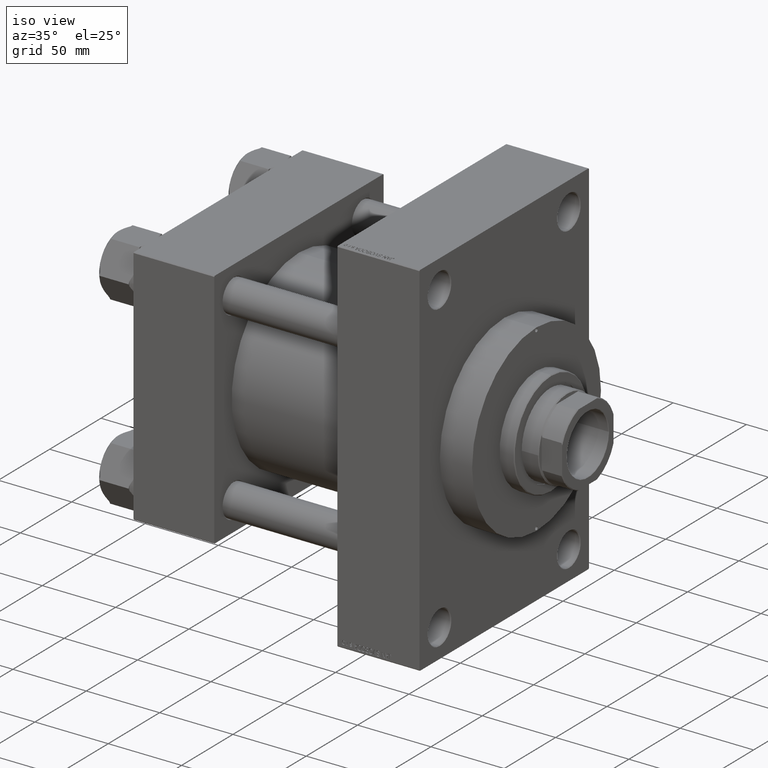
[diagram: clean part render]
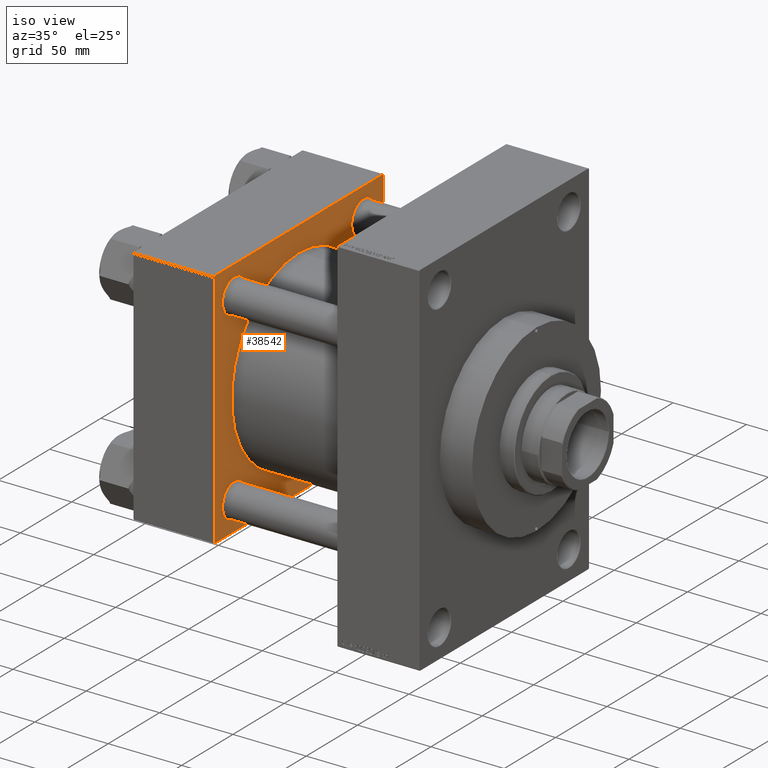
[diagram: same view with one face highlighted and labeled with its STEP entity id]
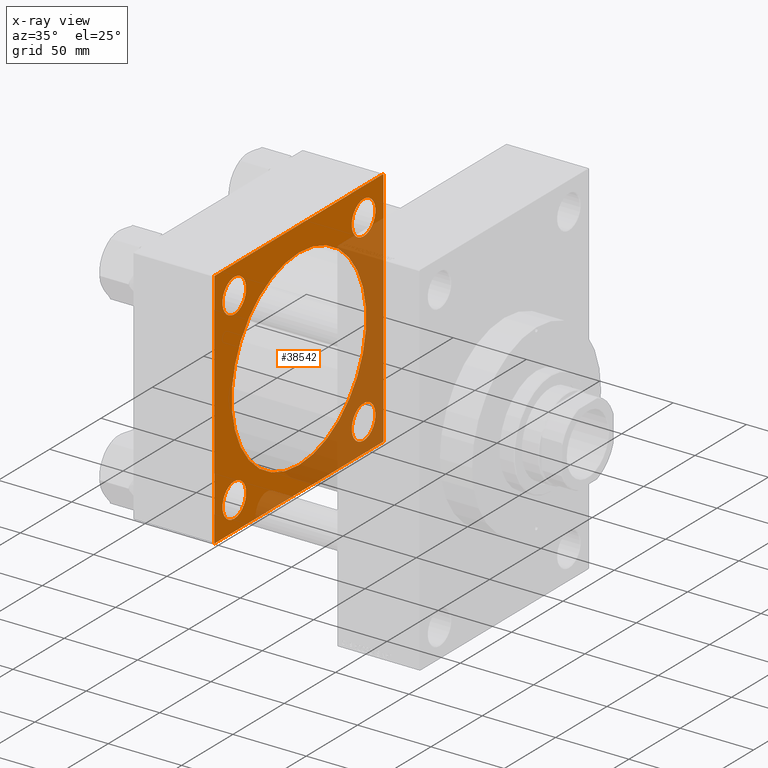
[diagram: x-ray of the same camera — body ghosted, the highlighted face saturated]
A machine part, iso view. The second image highlights one B-rep face of the part: STEP entity #38542.
The next image is the same camera in x-ray: the body ghosted, the highlighted face saturated — about 39% of this face is hidden behind the body in this view.
In plain terms, the highlighted planar face has unit normal (-1, 0, 0).
Its self-contained STEP definition (entity closure, byte-faithful):
#615 = EDGE_CURVE ( 'NONE', #23322, #44703, #16210, .T. ) ;
#834 = CARTESIAN_POINT ( 'NONE',  ( 55.00000000000000000, 82.50000000000002842, -82.00000000000000000 ) ) ;
#1182 = DIRECTION ( 'NONE',  ( 0.000000000000000000, 0.000000000000000000, 1.000000000000000000 ) ) ;
#1954 = VERTEX_POINT ( 'NONE', #44355 ) ;
#2098 = LINE ( 'NONE', #24596, #19393 ) ;
#2176 = DIRECTION ( 'NONE',  ( 0.000000000000000000, 0.000000000000000000, 1.000000000000000000 ) ) ;
#2219 = CARTESIAN_POINT ( 'NONE',  ( 55.00000000000000000, 62.95000000000000284, -62.95000000000000284 ) ) ;
#2581 = DIRECTION ( 'NONE',  ( -1.000000000000000000, 0.000000000000000000, 0.000000000000000000 ) ) ;
#3169 = DIRECTION ( 'NONE',  ( 0.000000000000000000, 0.000000000000000000, -1.000000000000000000 ) ) ;
#3210 = FACE_BOUND ( 'NONE', #22854, .T. ) ;
#3405 = CARTESIAN_POINT ( 'NONE',  ( 55.00000000000000000, -82.49999999999997158, 82.50000000000001421 ) ) ;
#3562 = VERTEX_POINT ( 'NONE', #20777 ) ;
#3639 = CARTESIAN_POINT ( 'NONE',  ( 55.00000000000000000, 62.95000000000000284, 51.45000000000002416 ) ) ;
#4126 = AXIS2_PLACEMENT_3D ( 'NONE', #23767, #38513, #30059 ) ;
#6152 = VERTEX_POINT ( 'NONE', #19235 ) ;
#6568 = DIRECTION ( 'NONE',  ( 0.000000000000000000, -1.682156097916903588E-16, -1.000000000000000000 ) ) ;
#6605 = DIRECTION ( 'NONE',  ( -1.000000000000000000, 0.000000000000000000, 0.000000000000000000 ) ) ;
#7032 = DIRECTION ( 'NONE',  ( 0.000000000000000000, 0.000000000000000000, 1.000000000000000000 ) ) ;
#7077 = CARTESIAN_POINT ( 'NONE',  ( 54.99999999999999289, -2.602085213965210642E-15, 0.000000000000000000 ) ) ;
#7673 = DIRECTION ( 'NONE',  ( 1.000000000000000000, -0.000000000000000000, -0.000000000000000000 ) ) ;
#8716 = VECTOR ( 'NONE', #42989, 1000.000000000000114 ) ;
#9589 = VECTOR ( 'NONE', #39678, 1000.000000000000114 ) ;
#10230 = PLANE ( 'NONE',  #14154 ) ;
#10280 = AXIS2_PLACEMENT_3D ( 'NONE', #7077, #25242, #39984 ) ;
#10349 = EDGE_CURVE ( 'NONE', #13065, #1954, #27741, .T. ) ;
#10361 = CARTESIAN_POINT ( 'NONE',  ( 55.00000000000000000, -82.50000000000000000, -81.99999999999998579 ) ) ;
#11569 = VECTOR ( 'NONE', #33061, 1000.000000000000000 ) ;
#12080 = AXIS2_PLACEMENT_3D ( 'NONE', #28781, #38945, #2176 ) ;
#12276 = EDGE_CURVE ( 'NONE', #34502, #33243, #33473, .T. ) ;
#12359 = ORIENTED_EDGE ( 'NONE', *, *, #13044, .T. ) ;
#12704 = CARTESIAN_POINT ( 'NONE',  ( 55.00000000000000000, 82.00000000000005684, 82.50000000000002842 ) ) ;
#13044 = EDGE_CURVE ( 'NONE', #25323, #3562, #31561, .T. ) ;
#13065 = VERTEX_POINT ( 'NONE', #23601 ) ;
#13797 = LINE ( 'NONE', #28553, #9589 ) ;
#13827 = DIRECTION ( 'NONE',  ( -1.000000000000000000, 0.000000000000000000, 0.000000000000000000 ) ) ;
#13861 = FACE_OUTER_BOUND ( 'NONE', #29247, .T. ) ;
#14154 = AXIS2_PLACEMENT_3D ( 'NONE', #24998, #6605, #36106 ) ;
#15284 = CARTESIAN_POINT ( 'NONE',  ( 55.00000000000000000, 62.95000000000000284, 74.44999999999998863 ) ) ;
#15622 = VERTEX_POINT ( 'NONE', #34304 ) ;
#16210 = CIRCLE ( 'NONE', #16975, 11.49999999999998224 ) ;
#16485 = AXIS2_PLACEMENT_3D ( 'NONE', #34311, #23185, #1182 ) ;
#16968 = DIRECTION ( 'NONE',  ( 0.000000000000000000, 0.000000000000000000, 1.000000000000000000 ) ) ;
#16975 = AXIS2_PLACEMENT_3D ( 'NONE', #31599, #2581, #35704 ) ;
#17307 = VERTEX_POINT ( 'NONE', #45229 ) ;
#17655 = ORIENTED_EDGE ( 'NONE', *, *, #28096, .F. ) ;
#18064 = AXIS2_PLACEMENT_3D ( 'NONE', #25429, #40175, #7032 ) ;
#18211 = LINE ( 'NONE', #21859, #37961 ) ;
#18627 = CIRCLE ( 'NONE', #45695, 11.49999999999998224 ) ;
#19173 = CARTESIAN_POINT ( 'NONE',  ( 55.00000000000000000, -62.94999999999998153, -62.95000000000001705 ) ) ;
#19186 = CARTESIAN_POINT ( 'NONE',  ( 55.00000000000000000, 62.95000000000000284, -74.44999999999998863 ) ) ;
#19217 = CARTESIAN_POINT ( 'NONE',  ( 55.00000000000000000, 82.50000000000002842, 82.00000000000005684 ) ) ;
#19235 = CARTESIAN_POINT ( 'NONE',  ( 55.00000000000000000, -62.94999999999998153, -74.45000000000000284 ) ) ;
#19393 = VECTOR ( 'NONE', #46143, 1000.000000000000000 ) ;
#19868 = EDGE_CURVE ( 'NONE', #23686, #28988, #36047, .T. ) ;
#20604 = LINE ( 'NONE', #35343, #43175 ) ;
#20777 = CARTESIAN_POINT ( 'NONE',  ( 55.00000000000000000, 82.00000000000005684, 82.50000000000002842 ) ) ;
#20831 = ORIENTED_EDGE ( 'NONE', *, *, #19868, .T. ) ;
#20862 = VECTOR ( 'NONE', #6568, 1000.000000000000000 ) ;
#21131 = FACE_BOUND ( 'NONE', #31927, .T. ) ;
#21617 = VERTEX_POINT ( 'NONE', #46135 ) ;
#21859 = CARTESIAN_POINT ( 'NONE',  ( 55.00000000000000000, -82.00000000000000000, -82.50000000000000000 ) ) ;
#22228 = ORIENTED_EDGE ( 'NONE', *, *, #27455, .F. ) ;
#22408 = CIRCLE ( 'NONE', #23172, 65.50000000000001421 ) ;
#22444 = CARTESIAN_POINT ( 'NONE',  ( 54.99999999999999289, -2.602085213965210642E-15, 0.000000000000000000 ) ) ;
#22543 = ORIENTED_EDGE ( 'NONE', *, *, #27588, .T. ) ;
#22854 = EDGE_LOOP ( 'NONE', ( #46980, #35191 ) ) ;
#22926 = CARTESIAN_POINT ( 'NONE',  ( 55.00000000000000000, -62.94999999999998153, 74.45000000000000284 ) ) ;
#23172 = AXIS2_PLACEMENT_3D ( 'NONE', #22444, #7673, #33565 ) ;
#23185 = DIRECTION ( 'NONE',  ( -1.000000000000000000, 0.000000000000000000, 0.000000000000000000 ) ) ;
#23322 = VERTEX_POINT ( 'NONE', #39162 ) ;
#23388 = ORIENTED_EDGE ( 'NONE', *, *, #40474, .T. ) ;
#23601 = CARTESIAN_POINT ( 'NONE',  ( 55.00000000000000000, -81.99999999999997158, 82.50000000000001421 ) ) ;
#23635 = ORIENTED_EDGE ( 'NONE', *, *, #10349, .T. ) ;
#23648 = CARTESIAN_POINT ( 'NONE',  ( 55.00000000000000000, -82.49999999999997158, 82.00000000000001421 ) ) ;
#23686 = VERTEX_POINT ( 'NONE', #40307 ) ;
#23767 = CARTESIAN_POINT ( 'NONE',  ( 55.00000000000000000, -62.94999999999998153, -62.95000000000001705 ) ) ;
#24329 = VERTEX_POINT ( 'NONE', #834 ) ;
#24596 = CARTESIAN_POINT ( 'NONE',  ( 55.00000000000000000, 82.50000000000002842, 82.50000000000002842 ) ) ;
#24933 = ORIENTED_EDGE ( 'NONE', *, *, #12276, .T. ) ;
#24998 = CARTESIAN_POINT ( 'NONE',  ( 55.00000000000000000, 0.000000000000000000, 0.000000000000000000 ) ) ;
#25000 = CIRCLE ( 'NONE', #4126, 11.49999999999998224 ) ;
#25197 = LINE ( 'NONE', #3405, #20862 ) ;
#25242 = DIRECTION ( 'NONE',  ( 1.000000000000000000, -0.000000000000000000, -0.000000000000000000 ) ) ;
#25323 = VERTEX_POINT ( 'NONE', #19217 ) ;
#25429 = CARTESIAN_POINT ( 'NONE',  ( 55.00000000000000000, -62.94999999999998153, 62.95000000000001705 ) ) ;
#26272 = CARTESIAN_POINT ( 'NONE',  ( 55.00000000000000000, 82.50000000000002842, -82.49999999999997158 ) ) ;
#26375 = EDGE_CURVE ( 'NONE', #44703, #23322, #32400, .T. ) ;
#27053 = CARTESIAN_POINT ( 'NONE',  ( 55.00000000000000000, 62.95000000000000284, 62.95000000000000284 ) ) ;
#27334 = VECTOR ( 'NONE', #38576, 1000.000000000000114 ) ;
#27455 = EDGE_CURVE ( 'NONE', #25323, #24329, #20604, .T. ) ;
#27588 = EDGE_CURVE ( 'NONE', #1954, #47125, #25197, .T. ) ;
#27741 = LINE ( 'NONE', #23648, #8716 ) ;
#28096 = EDGE_CURVE ( 'NONE', #17307, #21617, #22408, .T. ) ;
#28553 = CARTESIAN_POINT ( 'NONE',  ( 55.00000000000000000, 82.50000000000002842, -82.00000000000000000 ) ) ;
#28781 = CARTESIAN_POINT ( 'NONE',  ( 55.00000000000000000, -62.94999999999998153, 62.95000000000001705 ) ) ;
#28988 = VERTEX_POINT ( 'NONE', #22926 ) ;
#29107 = DIRECTION ( 'NONE',  ( 0.000000000000000000, 0.7071067811865376918, -0.7071067811865574537 ) ) ;
#29247 = EDGE_LOOP ( 'NONE', ( #43141, #33813, #22228, #12359, #34777, #23635, #22543, #40918 ) ) ;
#29431 = LINE ( 'NONE', #26272, #11569 ) ;
#29730 = ORIENTED_EDGE ( 'NONE', *, *, #41889, .F. ) ;
#30059 = DIRECTION ( 'NONE',  ( 0.000000000000000000, 0.000000000000000000, 1.000000000000000000 ) ) ;
#30335 = EDGE_LOOP ( 'NONE', ( #29730, #17655 ) ) ;
#30791 = EDGE_CURVE ( 'NONE', #32211, #36748, #29431, .T. ) ;
#31263 = CARTESIAN_POINT ( 'NONE',  ( 55.00000000000000000, -82.00000000000000000, -82.50000000000000000 ) ) ;
#31561 = LINE ( 'NONE', #12704, #27334 ) ;
#31599 = CARTESIAN_POINT ( 'NONE',  ( 55.00000000000000000, 62.95000000000000284, -62.95000000000000284 ) ) ;
#31927 = EDGE_LOOP ( 'NONE', ( #24933, #43430 ) ) ;
#32211 = VERTEX_POINT ( 'NONE', #37356 ) ;
#32400 = CIRCLE ( 'NONE', #38563, 11.49999999999998224 ) ;
#32721 = EDGE_CURVE ( 'NONE', #33243, #34502, #41014, .T. ) ;
#33061 = DIRECTION ( 'NONE',  ( 0.000000000000000000, -1.000000000000000000, -1.682156097916903588E-16 ) ) ;
#33243 = VERTEX_POINT ( 'NONE', #15284 ) ;
#33473 = CIRCLE ( 'NONE', #16485, 11.49999999999998224 ) ;
#33565 = DIRECTION ( 'NONE',  ( 0.000000000000000000, 0.000000000000000000, 1.000000000000000000 ) ) ;
#33668 = EDGE_CURVE ( 'NONE', #3562, #13065, #2098, .T. ) ;
#33813 = ORIENTED_EDGE ( 'NONE', *, *, #41230, .T. ) ;
#34066 = DIRECTION ( 'NONE',  ( 0.000000000000000000, 0.000000000000000000, 1.000000000000000000 ) ) ;
#34085 = ORIENTED_EDGE ( 'NONE', *, *, #615, .T. ) ;
#34196 = EDGE_CURVE ( 'NONE', #15622, #6152, #18627, .T. ) ;
#34304 = CARTESIAN_POINT ( 'NONE',  ( 55.00000000000000000, -62.94999999999998153, -51.45000000000003837 ) ) ;
#34311 = CARTESIAN_POINT ( 'NONE',  ( 55.00000000000000000, 62.95000000000000284, 62.95000000000000284 ) ) ;
#34502 = VERTEX_POINT ( 'NONE', #3639 ) ;
#34777 = ORIENTED_EDGE ( 'NONE', *, *, #33668, .T. ) ;
#35191 = ORIENTED_EDGE ( 'NONE', *, *, #34196, .T. ) ;
#35343 = CARTESIAN_POINT ( 'NONE',  ( 55.00000000000000000, 82.50000000000002842, 82.50000000000002842 ) ) ;
#35370 = ORIENTED_EDGE ( 'NONE', *, *, #26375, .T. ) ;
#35704 = DIRECTION ( 'NONE',  ( 0.000000000000000000, 0.000000000000000000, 1.000000000000000000 ) ) ;
#35813 = EDGE_CURVE ( 'NONE', #47125, #36748, #18211, .T. ) ;
#36047 = CIRCLE ( 'NONE', #12080, 11.49999999999998224 ) ;
#36106 = DIRECTION ( 'NONE',  ( 0.000000000000000000, 0.000000000000000000, 1.000000000000000000 ) ) ;
#36748 = VERTEX_POINT ( 'NONE', #31263 ) ;
#37356 = CARTESIAN_POINT ( 'NONE',  ( 55.00000000000000000, 82.00000000000005684, -82.49999999999997158 ) ) ;
#37783 = DIRECTION ( 'NONE',  ( -1.000000000000000000, 0.000000000000000000, 0.000000000000000000 ) ) ;
#37961 = VECTOR ( 'NONE', #29107, 999.9999999999998863 ) ;
#38513 = DIRECTION ( 'NONE',  ( -1.000000000000000000, 0.000000000000000000, 0.000000000000000000 ) ) ;
#38542 = ADVANCED_FACE ( 'NONE', ( #3210, #43142, #39495, #21131, #47505, #13861 ), #10230, .F. ) ;
#38563 = AXIS2_PLACEMENT_3D ( 'NONE', #2219, #13827, #16968 ) ;
#38576 = DIRECTION ( 'NONE',  ( 0.000000000000000000, -0.7071067811865474617, 0.7071067811865474617 ) ) ;
#38901 = CIRCLE ( 'NONE', #18064, 11.49999999999998224 ) ;
#38945 = DIRECTION ( 'NONE',  ( -1.000000000000000000, 0.000000000000000000, 0.000000000000000000 ) ) ;
#39162 = CARTESIAN_POINT ( 'NONE',  ( 55.00000000000000000, 62.95000000000000284, -51.45000000000002416 ) ) ;
#39300 = EDGE_LOOP ( 'NONE', ( #35370, #34085 ) ) ;
#39495 = FACE_BOUND ( 'NONE', #44721, .T. ) ;
#39627 = CIRCLE ( 'NONE', #10280, 65.50000000000001421 ) ;
#39678 = DIRECTION ( 'NONE',  ( -0.000000000000000000, 0.7071067811865474617, 0.7071067811865474617 ) ) ;
#39984 = DIRECTION ( 'NONE',  ( 0.000000000000000000, 0.000000000000000000, 1.000000000000000000 ) ) ;
#40175 = DIRECTION ( 'NONE',  ( -1.000000000000000000, 0.000000000000000000, 0.000000000000000000 ) ) ;
#40307 = CARTESIAN_POINT ( 'NONE',  ( 55.00000000000000000, -62.94999999999998153, 51.45000000000003837 ) ) ;
#40474 = EDGE_CURVE ( 'NONE', #28988, #23686, #38901, .T. ) ;
#40918 = ORIENTED_EDGE ( 'NONE', *, *, #35813, .T. ) ;
#41014 = CIRCLE ( 'NONE', #43349, 11.49999999999998224 ) ;
#41230 = EDGE_CURVE ( 'NONE', #32211, #24329, #13797, .T. ) ;
#41814 = DIRECTION ( 'NONE',  ( -1.000000000000000000, 0.000000000000000000, 0.000000000000000000 ) ) ;
#41889 = EDGE_CURVE ( 'NONE', #21617, #17307, #39627, .T. ) ;
#42989 = DIRECTION ( 'NONE',  ( -0.000000000000000000, -0.7071067811865474617, -0.7071067811865474617 ) ) ;
#43141 = ORIENTED_EDGE ( 'NONE', *, *, #30791, .F. ) ;
#43142 = FACE_BOUND ( 'NONE', #39300, .T. ) ;
#43175 = VECTOR ( 'NONE', #3169, 1000.000000000000000 ) ;
#43349 = AXIS2_PLACEMENT_3D ( 'NONE', #27053, #41814, #34066 ) ;
#43430 = ORIENTED_EDGE ( 'NONE', *, *, #32721, .T. ) ;
#43712 = EDGE_CURVE ( 'NONE', #6152, #15622, #25000, .T. ) ;
#44355 = CARTESIAN_POINT ( 'NONE',  ( 55.00000000000000000, -82.49999999999997158, 82.00000000000001421 ) ) ;
#44703 = VERTEX_POINT ( 'NONE', #19186 ) ;
#44721 = EDGE_LOOP ( 'NONE', ( #20831, #23388 ) ) ;
#44826 = DIRECTION ( 'NONE',  ( 0.000000000000000000, 0.000000000000000000, 1.000000000000000000 ) ) ;
#45229 = CARTESIAN_POINT ( 'NONE',  ( 54.99999999999999289, 5.419351320449953395E-15, -65.50000000000001421 ) ) ;
#45695 = AXIS2_PLACEMENT_3D ( 'NONE', #19173, #37783, #44826 ) ;
#46135 = CARTESIAN_POINT ( 'NONE',  ( 54.99999999999999289, -2.602085213965210642E-15, 65.50000000000001421 ) ) ;
#46143 = DIRECTION ( 'NONE',  ( 0.000000000000000000, -1.000000000000000000, -8.410780489584519171E-17 ) ) ;
#46980 = ORIENTED_EDGE ( 'NONE', *, *, #43712, .T. ) ;
#47125 = VERTEX_POINT ( 'NONE', #10361 ) ;
#47505 = FACE_BOUND ( 'NONE', #30335, .T. ) ;